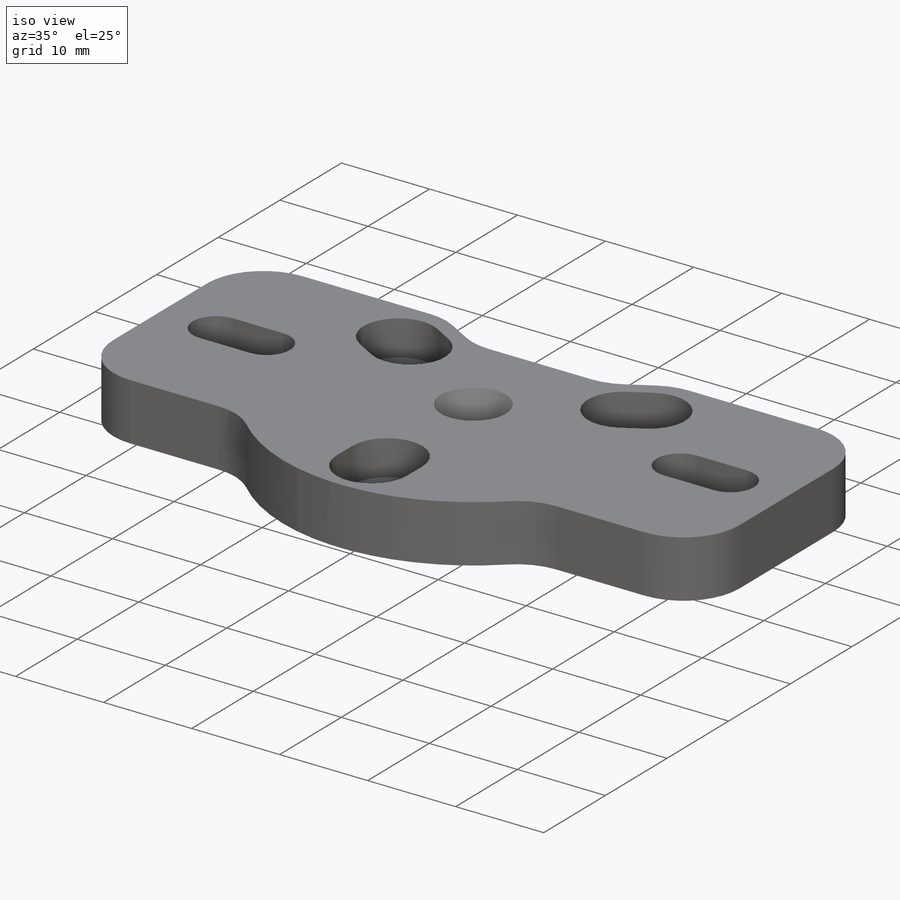
[diagram: iso view]
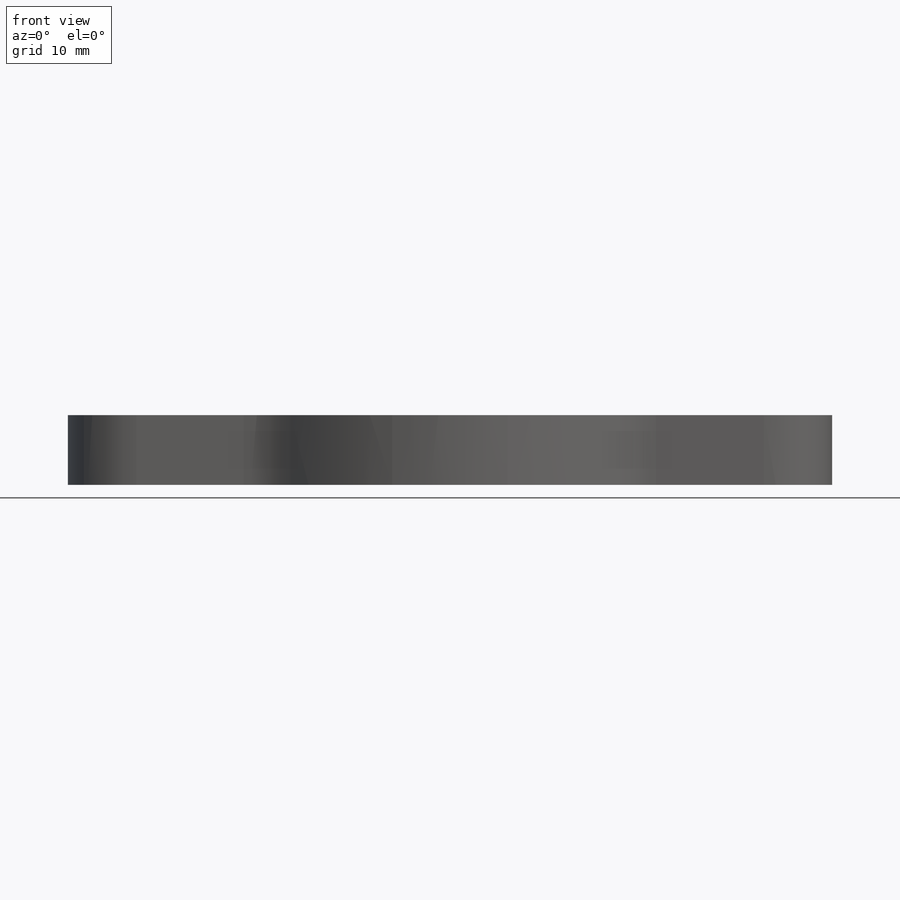
[diagram: front view]
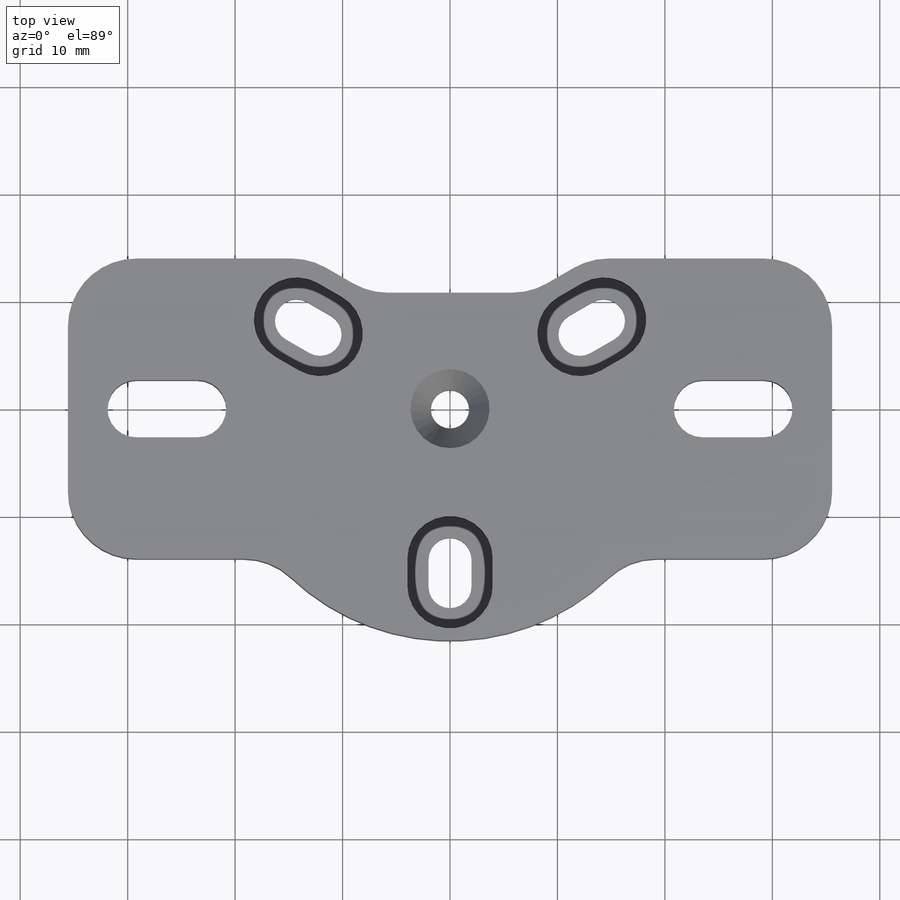
[diagram: top view]
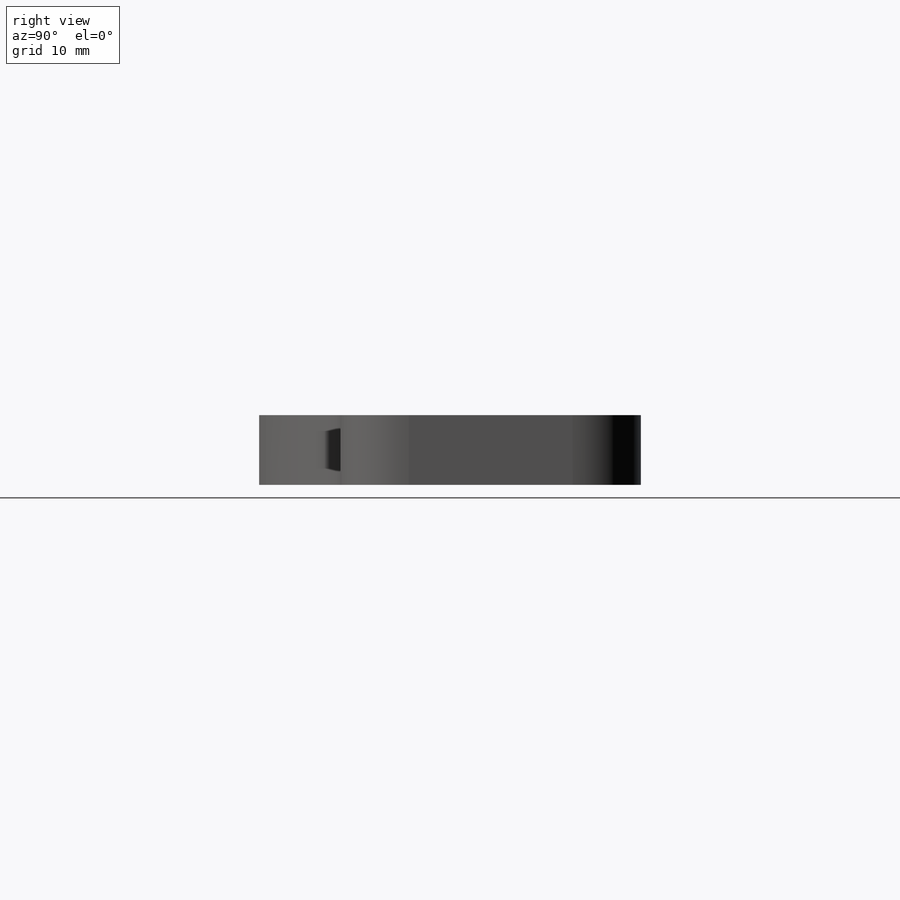
[diagram: right view]
SOLIDWORKS PART (.sldprt)
format: sldprt  version: not decoded by parser v0  size: 308,736 bytes
history: native  units: mm
features: sketch x2, material x1, extrude x1, cut_extrude x1, plane x1, chamfer x1 (+11 scaffold rows collapsed)
feature tree (18):
  scaffold x11  (default folders/planes/origin — collapsed)
  material  "CA"
  sketch  "Sketch1"  dims[c1.D3=3.556mm c1.D10=40.0mm c1.D11=6.35mm c1.D8=33.0mm c1.D9=4.0mm c1.D13=25.4mm c1.D18=6.35mm c1.D16=21.59mm c1.D21=6.35mm c1.D14=6.35mm c1.D1=40.0mm c1.D2=71.12mm c1.D4=23.495mm c1.D5=23.495mm c1.D6=~9.065681mm c1.D7=5.334mm c2.D6=29.21mm c2.D8=15.0mm c2.D9=15.0mm c2.D12=~11.729957mm c3.D12=120.0deg c3.D14=~9.19923mm c3.D15=13.97mm c3.D16=21.59mm c3.D17=35.56mm c4.D14=19.05mm c4.D19=2.54mm c4.D20=13.97mm c4.D13=10.795mm c4.D22=5.588mm c4.D23=5.588mm]
  extrude  "Boss-Extrude1"  Depth=6.5mm
  sketch  "Sketch5"  dims[D1=7.9375mm D2=0.635mm]
  cut_extrude  "Cut-Extrude1"  Depth=4mm
  plane  "Plane1"
  chamfer  "Chamfer1"  Distance=1.905mm
decode coverage: 5 of 5 modeling features carry decoded parameters
note: ~ marks probable driven/reference dimensions
note: suppression state not decoded; provenance and decode notes live in map.json
